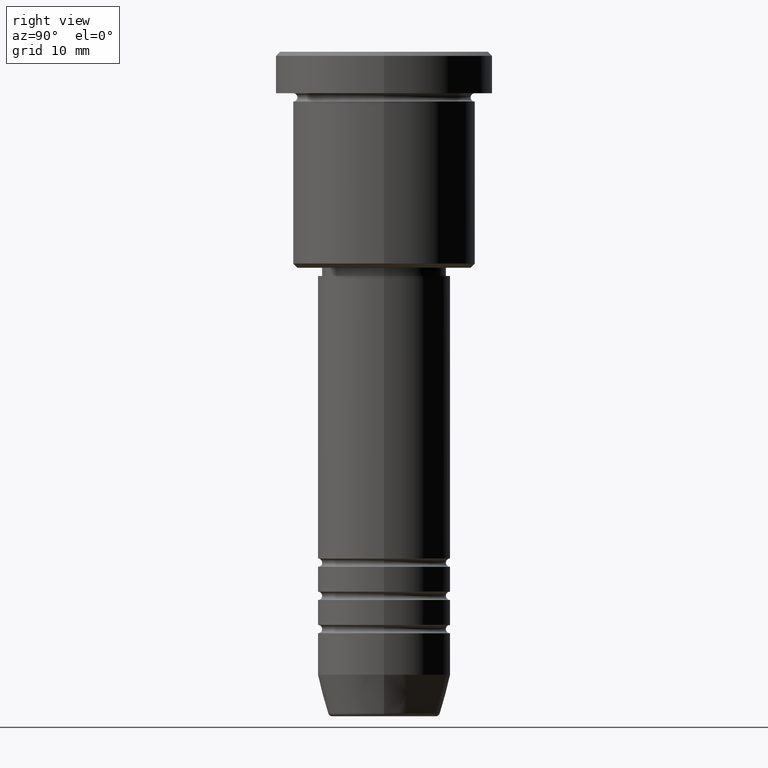
[diagram: clean part render]
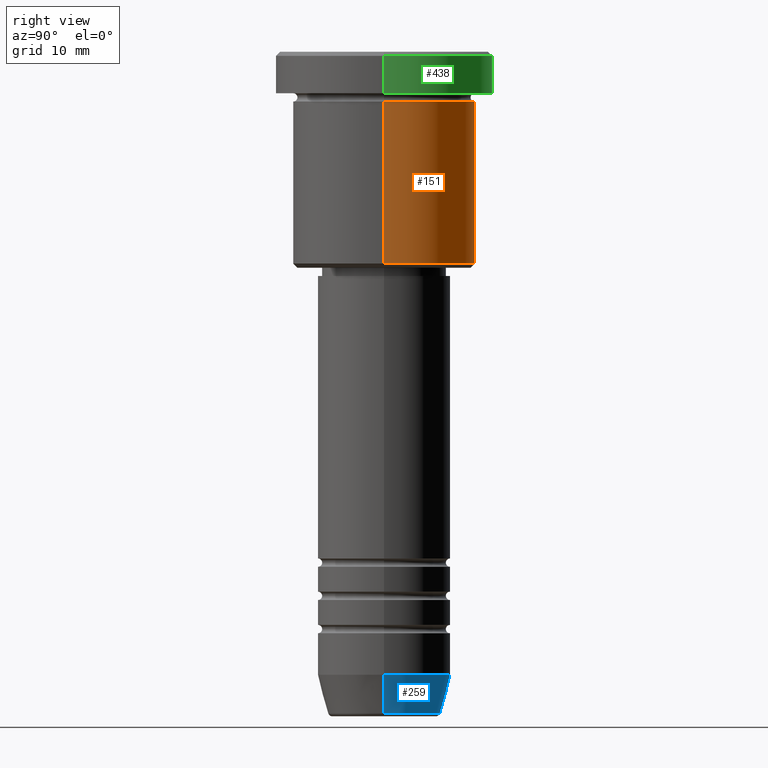
[diagram: same view with three faces highlighted in distinct colors, each labeled with its STEP entity id]
A machine part, right view with three faces highlighted in distinct colors.
Their STEP definitions:

[orange] entity #151 — the highlighted cylindrical surface (partial cylindrical patch) has radius 11 mm, axis along (-0, -0, 1).
#25 = DIRECTION ( 'NONE',  ( -0.000000000000000000, -0.000000000000000000, 1.000000000000000000 ) ) ;
#33 = AXIS2_PLACEMENT_3D ( 'NONE', #183, #98, #838 ) ;
#72 = CARTESIAN_POINT ( 'NONE',  ( -11.00000000000000000, 1.347111479062088405E-15, -5.999999999999999112 ) ) ;
#98 = DIRECTION ( 'NONE',  ( -0.000000000000000000, -0.000000000000000000, 1.000000000000000000 ) ) ;
#128 = CARTESIAN_POINT ( 'NONE',  ( 11.00000000000000000, 0.000000000000000000, -5.999999999999999112 ) ) ;
#151 = ADVANCED_FACE ( 'NONE', ( #274 ), #1003, .T. ) ;
#172 = DIRECTION ( 'NONE',  ( -0.000000000000000000, -0.000000000000000000, 1.000000000000000000 ) ) ;
#183 = CARTESIAN_POINT ( 'NONE',  ( 0.000000000000000000, 0.000000000000000000, 0.000000000000000000 ) ) ;
#274 = FACE_OUTER_BOUND ( 'NONE', #280, .T. ) ;
#280 = EDGE_LOOP ( 'NONE', ( #684, #594, #801, #412 ) ) ;
#285 = VERTEX_POINT ( 'NONE', #979 ) ;
#354 = CARTESIAN_POINT ( 'NONE',  ( 11.00000000000000000, 0.000000000000000000, 0.000000000000000000 ) ) ;
#372 = DIRECTION ( 'NONE',  ( -0.000000000000000000, -0.000000000000000000, 1.000000000000000000 ) ) ;
#379 = LINE ( 'NONE', #354, #995 ) ;
#393 = CIRCLE ( 'NONE', #728, 11.00000000000000000 ) ;
#403 = CARTESIAN_POINT ( 'NONE',  ( -11.00000000000000000, 1.347111479062088405E-15, -25.50000000000000355 ) ) ;
#412 = ORIENTED_EDGE ( 'NONE', *, *, #1149, .F. ) ;
#417 = VERTEX_POINT ( 'NONE', #128 ) ;
#444 = DIRECTION ( 'NONE',  ( -1.000000000000000000, 0.000000000000000000, 0.000000000000000000 ) ) ;
#513 = CARTESIAN_POINT ( 'NONE',  ( 0.000000000000000000, 0.000000000000000000, -25.50000000000000355 ) ) ;
#536 = EDGE_CURVE ( 'NONE', #285, #773, #393, .T. ) ;
#539 = EDGE_CURVE ( 'NONE', #417, #931, #1096, .T. ) ;
#594 = ORIENTED_EDGE ( 'NONE', *, *, #603, .T. ) ;
#603 = EDGE_CURVE ( 'NONE', #773, #931, #1152, .T. ) ;
#684 = ORIENTED_EDGE ( 'NONE', *, *, #536, .T. ) ;
#706 = CARTESIAN_POINT ( 'NONE',  ( -11.00000000000000000, 1.347111479062088405E-15, 0.000000000000000000 ) ) ;
#709 = DIRECTION ( 'NONE',  ( -0.000000000000000000, -0.000000000000000000, 1.000000000000000000 ) ) ;
#728 = AXIS2_PLACEMENT_3D ( 'NONE', #513, #709, #444 ) ;
#773 = VERTEX_POINT ( 'NONE', #403 ) ;
#801 = ORIENTED_EDGE ( 'NONE', *, *, #539, .F. ) ;
#837 = CARTESIAN_POINT ( 'NONE',  ( 0.000000000000000000, 0.000000000000000000, -5.999999999999999112 ) ) ;
#838 = DIRECTION ( 'NONE',  ( 1.000000000000000000, 0.000000000000000000, 0.000000000000000000 ) ) ;
#931 = VERTEX_POINT ( 'NONE', #72 ) ;
#979 = CARTESIAN_POINT ( 'NONE',  ( 11.00000000000000000, 0.000000000000000000, -25.50000000000000355 ) ) ;
#995 = VECTOR ( 'NONE', #172, 1000.000000000000000 ) ;
#1003 = CYLINDRICAL_SURFACE ( 'NONE', #33, 11.00000000000000000 ) ;
#1040 = VECTOR ( 'NONE', #25, 1000.000000000000000 ) ;
#1062 = AXIS2_PLACEMENT_3D ( 'NONE', #837, #372, #1095 ) ;
#1095 = DIRECTION ( 'NONE',  ( 1.000000000000000000, 0.000000000000000000, 0.000000000000000000 ) ) ;
#1096 = CIRCLE ( 'NONE', #1062, 11.00000000000000000 ) ;
#1149 = EDGE_CURVE ( 'NONE', #285, #417, #379, .T. ) ;
#1152 = LINE ( 'NONE', #706, #1040 ) ;

[blue] entity #259 — the highlighted conical surface has half-angle 15 deg.
#65 = DIRECTION ( 'NONE',  ( 0.2588190451025214611, 0.000000000000000000, 0.9659258262890679791 ) ) ;
#74 = AXIS2_PLACEMENT_3D ( 'NONE', #1153, #1049, #1063 ) ;
#88 = CARTESIAN_POINT ( 'NONE',  ( 6.759553456999440435, 0.000000000000000000, -79.62940952255127058 ) ) ;
#131 = VERTEX_POINT ( 'NONE', #264 ) ;
#144 = LINE ( 'NONE', #510, #584 ) ;
#165 = EDGE_LOOP ( 'NONE', ( #567, #352, #760, #961 ) ) ;
#166 = DIRECTION ( 'NONE',  ( -0.000000000000000000, -0.000000000000000000, 1.000000000000000000 ) ) ;
#170 = EDGE_CURVE ( 'NONE', #622, #131, #1056, .T. ) ;
#193 = CARTESIAN_POINT ( 'NONE',  ( 0.000000000000000000, 0.000000000000000000, -79.62940952255127058 ) ) ;
#198 = VECTOR ( 'NONE', #392, 1000.000000000000114 ) ;
#199 = CIRCLE ( 'NONE', #448, 8.000000000000000000 ) ;
#235 = CONICAL_SURFACE ( 'NONE', #74, 8.000000000000000000, 0.2617993877991502405 ) ;
#259 = ADVANCED_FACE ( 'NONE', ( #786 ), #235, .T. ) ;
#264 = CARTESIAN_POINT ( 'NONE',  ( -8.000000000000000000, 9.797174393178825657E-16, -75.00000000000001421 ) ) ;
#287 = VERTEX_POINT ( 'NONE', #810 ) ;
#340 = EDGE_CURVE ( 'NONE', #287, #131, #199, .T. ) ;
#346 = VERTEX_POINT ( 'NONE', #88 ) ;
#352 = ORIENTED_EDGE ( 'NONE', *, *, #170, .T. ) ;
#392 = DIRECTION ( 'NONE',  ( -0.2588190451025214611, 3.169619151431774186E-17, 0.9659258262890679791 ) ) ;
#397 = CARTESIAN_POINT ( 'NONE',  ( -6.759553456999441323, 9.037619948979308185E-16, -79.62940952255127058 ) ) ;
#448 = AXIS2_PLACEMENT_3D ( 'NONE', #731, #166, #909 ) ;
#477 = EDGE_CURVE ( 'NONE', #346, #622, #898, .T. ) ;
#510 = CARTESIAN_POINT ( 'NONE',  ( 8.000000000000000000, 0.000000000000000000, -75.00000000000001421 ) ) ;
#558 = DIRECTION ( 'NONE',  ( -0.000000000000000000, -0.000000000000000000, 1.000000000000000000 ) ) ;
#567 = ORIENTED_EDGE ( 'NONE', *, *, #477, .T. ) ;
#578 = EDGE_CURVE ( 'NONE', #346, #287, #144, .T. ) ;
#584 = VECTOR ( 'NONE', #65, 1000.000000000000114 ) ;
#622 = VERTEX_POINT ( 'NONE', #397 ) ;
#632 = DIRECTION ( 'NONE',  ( 1.000000000000000000, 0.000000000000000000, 0.000000000000000000 ) ) ;
#664 = AXIS2_PLACEMENT_3D ( 'NONE', #193, #558, #632 ) ;
#731 = CARTESIAN_POINT ( 'NONE',  ( 0.000000000000000000, 0.000000000000000000, -75.00000000000001421 ) ) ;
#760 = ORIENTED_EDGE ( 'NONE', *, *, #340, .F. ) ;
#776 = CARTESIAN_POINT ( 'NONE',  ( -8.000000000000000000, 9.797174393178825657E-16, -75.00000000000001421 ) ) ;
#786 = FACE_OUTER_BOUND ( 'NONE', #165, .T. ) ;
#810 = CARTESIAN_POINT ( 'NONE',  ( 8.000000000000000000, 0.000000000000000000, -75.00000000000001421 ) ) ;
#898 = CIRCLE ( 'NONE', #664, 6.759553456999440435 ) ;
#909 = DIRECTION ( 'NONE',  ( 1.000000000000000000, 0.000000000000000000, 0.000000000000000000 ) ) ;
#961 = ORIENTED_EDGE ( 'NONE', *, *, #578, .F. ) ;
#1049 = DIRECTION ( 'NONE',  ( -0.000000000000000000, -0.000000000000000000, 1.000000000000000000 ) ) ;
#1056 = LINE ( 'NONE', #776, #198 ) ;
#1063 = DIRECTION ( 'NONE',  ( 1.000000000000000000, 0.000000000000000000, 0.000000000000000000 ) ) ;
#1153 = CARTESIAN_POINT ( 'NONE',  ( 0.000000000000000000, 0.000000000000000000, -75.00000000000001421 ) ) ;

[green] entity #438 — the highlighted cylindrical surface (partial cylindrical patch) has radius 13 mm, axis along (-0, -0, 1).
#21 = EDGE_CURVE ( 'NONE', #526, #581, #506, .T. ) ;
#35 = AXIS2_PLACEMENT_3D ( 'NONE', #436, #843, #347 ) ;
#47 = DIRECTION ( 'NONE',  ( -0.000000000000000000, -0.000000000000000000, 1.000000000000000000 ) ) ;
#86 = VECTOR ( 'NONE', #1178, 1000.000000000000000 ) ;
#87 = ORIENTED_EDGE ( 'NONE', *, *, #21, .T. ) ;
#150 = CARTESIAN_POINT ( 'NONE',  ( -13.00000000000000000, 1.592040838891559095E-15, -5.000000000000000000 ) ) ;
#241 = CARTESIAN_POINT ( 'NONE',  ( 13.00000000000000000, 0.000000000000000000, -5.000000000000000000 ) ) ;
#286 = FACE_OUTER_BOUND ( 'NONE', #599, .T. ) ;
#347 = DIRECTION ( 'NONE',  ( 1.000000000000000000, 0.000000000000000000, 0.000000000000000000 ) ) ;
#388 = VECTOR ( 'NONE', #732, 1000.000000000000000 ) ;
#395 = VERTEX_POINT ( 'NONE', #241 ) ;
#399 = VERTEX_POINT ( 'NONE', #150 ) ;
#411 = CARTESIAN_POINT ( 'NONE',  ( -13.00000000000000000, 1.592040838891559095E-15, -0.4999999999999796274 ) ) ;
#418 = CARTESIAN_POINT ( 'NONE',  ( 13.00000000000000000, 0.000000000000000000, -0.4999999999999796274 ) ) ;
#436 = CARTESIAN_POINT ( 'NONE',  ( 0.000000000000000000, 0.000000000000000000, 0.000000000000000000 ) ) ;
#438 = ADVANCED_FACE ( 'NONE', ( #286 ), #566, .T. ) ;
#457 = ORIENTED_EDGE ( 'NONE', *, *, #1094, .T. ) ;
#506 = CIRCLE ( 'NONE', #1176, 13.00000000000000000 ) ;
#526 = VERTEX_POINT ( 'NONE', #411 ) ;
#566 = CYLINDRICAL_SURFACE ( 'NONE', #35, 13.00000000000000000 ) ;
#581 = VERTEX_POINT ( 'NONE', #418 ) ;
#590 = ORIENTED_EDGE ( 'NONE', *, *, #1129, .F. ) ;
#599 = EDGE_LOOP ( 'NONE', ( #667, #457, #87, #590 ) ) ;
#637 = CARTESIAN_POINT ( 'NONE',  ( 13.00000000000000000, 0.000000000000000000, 0.000000000000000000 ) ) ;
#649 = CARTESIAN_POINT ( 'NONE',  ( -13.00000000000000000, 1.592040838891559095E-15, 0.000000000000000000 ) ) ;
#667 = ORIENTED_EDGE ( 'NONE', *, *, #848, .T. ) ;
#683 = DIRECTION ( 'NONE',  ( 1.000000000000000000, 0.000000000000000000, 0.000000000000000000 ) ) ;
#689 = CARTESIAN_POINT ( 'NONE',  ( 0.000000000000000000, 0.000000000000000000, -0.4999999999999796274 ) ) ;
#732 = DIRECTION ( 'NONE',  ( -0.000000000000000000, -0.000000000000000000, 1.000000000000000000 ) ) ;
#736 = LINE ( 'NONE', #637, #388 ) ;
#770 = AXIS2_PLACEMENT_3D ( 'NONE', #872, #47, #965 ) ;
#843 = DIRECTION ( 'NONE',  ( -0.000000000000000000, -0.000000000000000000, 1.000000000000000000 ) ) ;
#848 = EDGE_CURVE ( 'NONE', #395, #399, #916, .T. ) ;
#872 = CARTESIAN_POINT ( 'NONE',  ( 0.000000000000000000, 0.000000000000000000, -5.000000000000000000 ) ) ;
#916 = CIRCLE ( 'NONE', #770, 13.00000000000000000 ) ;
#929 = LINE ( 'NONE', #649, #86 ) ;
#965 = DIRECTION ( 'NONE',  ( 1.000000000000000000, 0.000000000000000000, 0.000000000000000000 ) ) ;
#1059 = DIRECTION ( 'NONE',  ( 0.000000000000000000, 0.000000000000000000, -1.000000000000000000 ) ) ;
#1094 = EDGE_CURVE ( 'NONE', #399, #526, #929, .T. ) ;
#1129 = EDGE_CURVE ( 'NONE', #395, #581, #736, .T. ) ;
#1176 = AXIS2_PLACEMENT_3D ( 'NONE', #689, #1059, #683 ) ;
#1178 = DIRECTION ( 'NONE',  ( -0.000000000000000000, -0.000000000000000000, 1.000000000000000000 ) ) ;